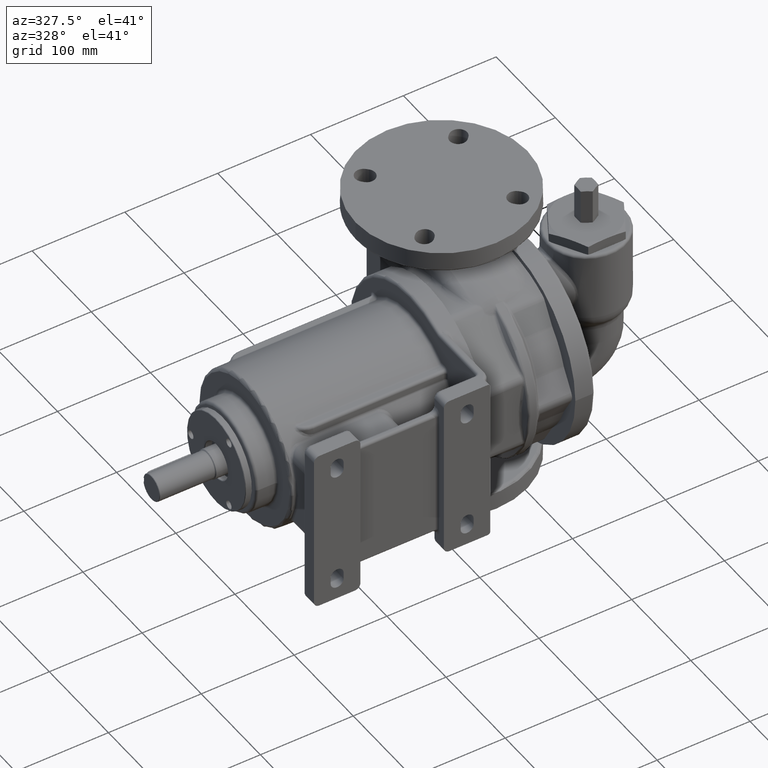
[diagram: clean part render]
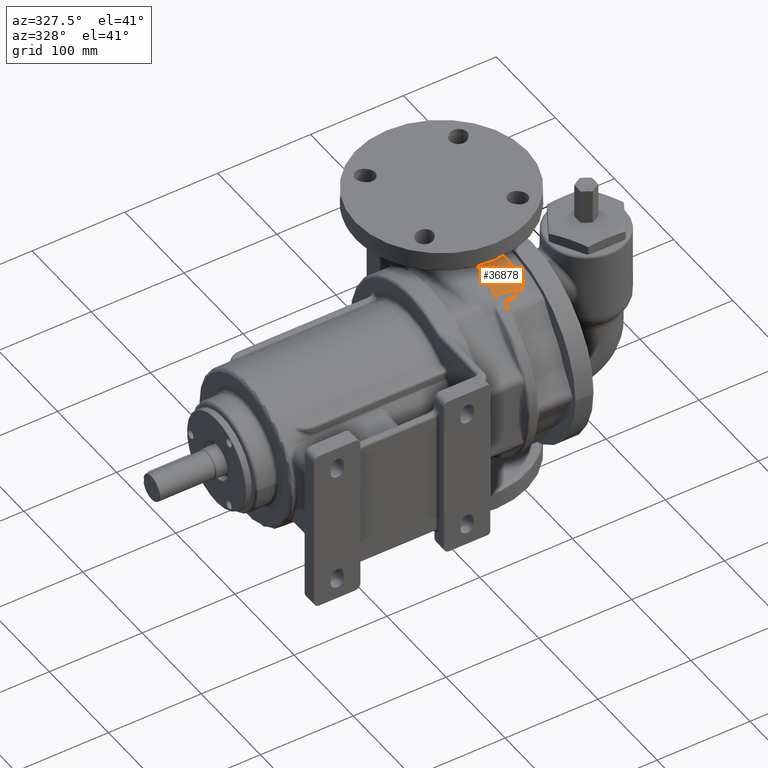
[diagram: same view with one face highlighted and labeled with its STEP entity id]
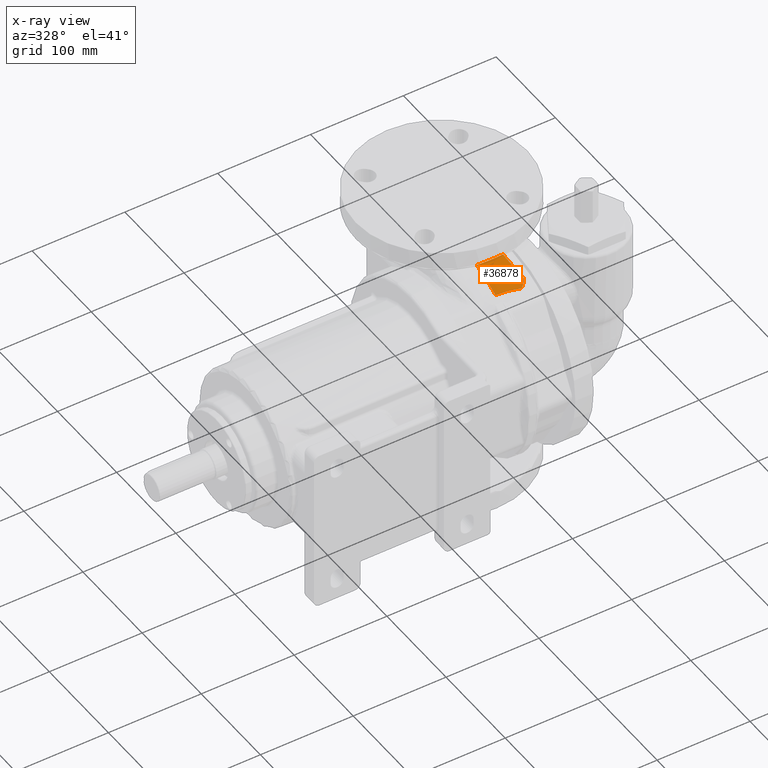
[diagram: x-ray of the same camera — body ghosted, the highlighted face saturated]
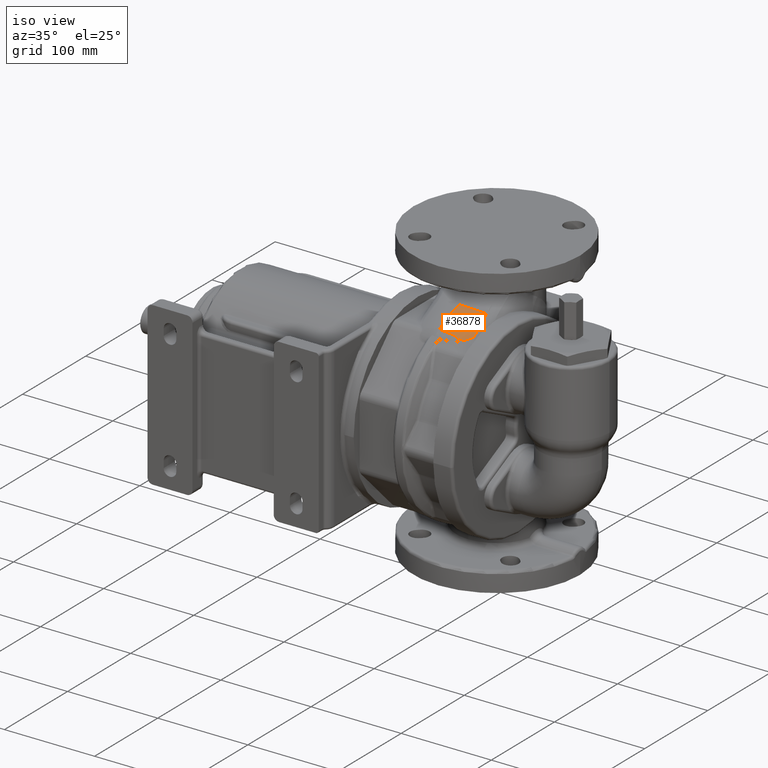
[diagram: same view with one face highlighted and labeled with its STEP entity id]
A machine part, auxiliary view. The second image highlights one B-rep face of the part: STEP entity #36878.
The next image is the same camera in x-ray: the body ghosted, the highlighted face saturated — about 0% of this face is hidden behind the body in this view.
A second angle (iso view) of the same face is appended — the face is thin or edge-on in the first view.
In plain terms, the highlighted face is a freeform B-spline surface patch.
Its self-contained STEP definition (entity closure, byte-faithful):
#11578=CARTESIAN_POINT('',(5.75E1,-3.641429363927E1,9.635351785667E1));
#11579=CARTESIAN_POINT('',(5.906498822332E1,-3.641429363334E1,
9.635351785990E1));
#11580=CARTESIAN_POINT('',(6.218953987240E1,-3.645591206184E1,
9.626924509475E1));
#11581=CARTESIAN_POINT('',(6.683578381111E1,-3.662721776679E1,
9.590749170853E1));
#11582=CARTESIAN_POINT('',(7.142054853473E1,-3.687772364851E1,
9.534184933829E1));
#11583=CARTESIAN_POINT('',(7.592991558307E1,-3.716929804545E1,
9.461347947619E1));
#11584=CARTESIAN_POINT('',(8.035750452245E1,-3.746001292933E1,
9.376921951175E1));
#11585=CARTESIAN_POINT('',(8.335526231400E1,-3.763026071325E1,
9.314120211050E1));
#11586=CARTESIAN_POINT('',(8.489011523713E1,-3.770318062381E1,
9.281252468212E1));
#11587=CARTESIAN_POINT('',(8.499136892950E1,-3.770790203825E1,
9.279082846550E1));
#11622=CARTESIAN_POINT('',(8.499136892950E1,-3.770790203825E1,
9.279082846550E1));
#11623=CARTESIAN_POINT('',(8.530971009739E1,-3.745028608427E1,
9.289480571156E1));
#11624=CARTESIAN_POINT('',(8.591022660031E1,-3.695077193227E1,
9.309393266545E1));
#11625=CARTESIAN_POINT('',(8.666640818964E1,-3.628838218084E1,
9.335237100900E1));
#11626=CARTESIAN_POINT('',(8.738368506697E1,-3.562450229050E1,
9.360694707075E1));
#11627=CARTESIAN_POINT('',(8.806399490749E1,-3.495863379986E1,
9.385728433723E1));
#11628=CARTESIAN_POINT('',(8.870255945674E1,-3.429700559873E1,
9.410121721849E1));
#11629=CARTESIAN_POINT('',(8.930090635841E1,-3.364035809436E1,
9.433858265952E1));
#11630=CARTESIAN_POINT('',(8.986732958443E1,-3.298146136144E1,
9.457210578005E1));
#11631=CARTESIAN_POINT('',(9.041036123475E1,-3.231130934754E1,
9.480492674145E1));
#11632=CARTESIAN_POINT('',(9.094161087569E1,-3.161533211393E1,
9.504175102008E1));
#11633=CARTESIAN_POINT('',(9.146498982397E1,-3.088671539665E1,
9.528424767532E1));
#11634=CARTESIAN_POINT('',(9.181002178834E1,-3.037634786279E1,
9.545006538837E1));
#11635=CARTESIAN_POINT('',(9.198138912517E1,-3.011477579497E1,
9.553398993092E1));
#11637=CARTESIAN_POINT('',(5.75E1,-4.663529415385E0,1.092018104859E2));
#11638=CARTESIAN_POINT('',(5.75E1,-5.352742119182E0,1.090109943583E2));
#11639=CARTESIAN_POINT('',(5.749999999054E1,-6.728437341860E0,
1.086195047868E2));
#11640=CARTESIAN_POINT('',(5.750000004729E1,-9.468352340442E0,
1.077972523659E2));
#11641=CARTESIAN_POINT('',(5.749999945131E1,-1.423159002248E1,
1.062556702847E2));
#11642=CARTESIAN_POINT('',(5.750000331108E1,-1.959635647680E1,
1.042613550968E2));
#11643=CARTESIAN_POINT('',(5.749999546358E1,-2.420993436579E1,
1.023171694214E2));
#11644=CARTESIAN_POINT('',(5.750000795221E1,-2.682162278541E1,
1.011500002010E2));
#11645=CARTESIAN_POINT('',(5.750000173053E1,-2.876767342541E1,
1.002466953967E2));
#11646=CARTESIAN_POINT('',(5.749998512472E1,-3.070060606528E1,
9.931564964019E1));
#11647=CARTESIAN_POINT('',(5.749999773006E1,-3.230011540240E1,
9.851682317836E1));
#11648=CARTESIAN_POINT('',(5.750000706110E1,-3.357277096961E1,
9.786408442864E1));
#11649=CARTESIAN_POINT('',(5.750000057607E1,-3.452374093941E1,
9.736771499379E1));
#11650=CARTESIAN_POINT('',(5.749999063450E1,-3.547113707021E1,
9.686455739986E1));
#11651=CARTESIAN_POINT('',(5.75E1,-3.610031504109E1,9.652461337117E1));
#11652=CARTESIAN_POINT('',(5.75E1,-3.641429363927E1,9.635351785667E1));
#11654=CARTESIAN_POINT('',(5.75E1,-4.663529415385E0,1.092018104859E2));
#11655=CARTESIAN_POINT('',(5.873716584149E1,-4.663529415379E0,
1.092018104859E2));
#11656=CARTESIAN_POINT('',(6.122223768292E1,-4.682444807190E0,
1.091827290595E2));
#11657=CARTESIAN_POINT('',(6.623036882342E1,-4.756671567856E0,
1.090664218838E2));
#11658=CARTESIAN_POINT('',(7.253963043591E1,-4.802597934432E0,
1.087654549056E2));
#11659=CARTESIAN_POINT('',(7.882706168378E1,-4.418524818274E0,
1.082154114425E2));
#11660=CARTESIAN_POINT('',(8.359827773039E1,-3.699962853461E0,
1.076152349857E2));
#11661=CARTESIAN_POINT('',(8.585694992292E1,-3.212010948847E0,
1.072678506477E2));
#11662=CARTESIAN_POINT('',(8.689668334943E1,-2.952633801193E0,
1.070926098027E2));
#12092=CARTESIAN_POINT('',(9.198138912517E1,-3.011477579497E1,
9.553398993092E1));
#12093=CARTESIAN_POINT('',(9.195727468503E1,-2.995996622045E1,
9.561176157260E1));
#12094=CARTESIAN_POINT('',(9.187379280156E1,-2.942461434328E1,
9.587889726830E1));
#12095=CARTESIAN_POINT('',(9.167228387341E1,-2.813301713875E1,
9.650915242243E1));
#12096=CARTESIAN_POINT('',(9.137395069380E1,-2.625236645756E1,
9.738856582817E1));
#12097=CARTESIAN_POINT('',(9.088002723488E1,-2.328261621252E1,
9.871717161970E1));
#12098=CARTESIAN_POINT('',(9.024728634583E1,-1.963169620267E1,
1.002641539565E2));
#12099=CARTESIAN_POINT('',(8.945584301342E1,-1.533344101457E1,
1.020164607171E2));
#12100=CARTESIAN_POINT('',(8.877707871024E1,-1.181506311380E1,
1.034305144958E2));
#12101=CARTESIAN_POINT('',(8.821850512696E1,-9.044140406449E0,
1.045523317895E2));
#12102=CARTESIAN_POINT('',(8.786146317334E1,-7.330646916127E0,
1.052534491263E2));
#12103=CARTESIAN_POINT('',(8.757030803368E1,-5.970873859408E0,
1.058164533582E2));
#12104=CARTESIAN_POINT('',(8.727527570830E1,-4.619284139622E0,
1.063811782552E2));
#12105=CARTESIAN_POINT('',(8.704973280991E1,-3.617843877446E0,
1.068064332776E2));
#12106=CARTESIAN_POINT('',(8.689668334943E1,-2.952633801193E0,
1.070926098027E2));
#17245=VERTEX_POINT('',#11637);
#17246=VERTEX_POINT('',#11652);
#17248=VERTEX_POINT('',#11662);
#17432=VERTEX_POINT('',#11622);
#17433=VERTEX_POINT('',#11635);
#36723=CARTESIAN_POINT('',(5.713772197652E1,-3.671986967999E1,
9.618598404739E1));
#36724=CARTESIAN_POINT('',(5.713869745730E1,-3.630434192578E1,
9.641368023246E1));
#36725=CARTESIAN_POINT('',(5.714030888926E1,-3.557299083855E1,
9.680994135797E1));
#36726=CARTESIAN_POINT('',(5.714248798167E1,-3.452205310815E1,
9.736809978699E1));
#36727=CARTESIAN_POINT('',(5.714436917324E1,-3.356984254467E1,
9.786511271386E1));
#36728=CARTESIAN_POINT('',(5.714678803055E1,-3.229544986057E1,
9.851871833080E1));
#36729=CARTESIAN_POINT('',(5.714972788084E1,-3.069370806151E1,
9.931859570302E1));
#36730=CARTESIAN_POINT('',(5.715329487075E1,-2.875826143678E1,
1.002507255865E2));
#36731=CARTESIAN_POINT('',(5.715696443563E1,-2.681009553945E1,
1.011548417671E2));
#36732=CARTESIAN_POINT('',(5.716207127171E1,-2.419633912608E1,
1.023226652193E2));
#36733=CARTESIAN_POINT('',(5.717179166852E1,-1.958145350679E1,
1.042668357287E2));
#36734=CARTESIAN_POINT('',(5.718493350649E1,-1.422048537695E1,
1.062591181815E2));
#36735=CARTESIAN_POINT('',(5.719869412380E1,-9.462322678530E0,
1.077988677198E2));
#36736=CARTESIAN_POINT('',(5.720770665922E1,-6.618377347725E0,
1.086523186440E2));
#36737=CARTESIAN_POINT('',(5.721275811334E1,-5.136344592898E0,
1.090722994155E2));
#36738=CARTESIAN_POINT('',(5.721560743699E1,-4.339726417544E0,
1.092909560408E2));
#36739=CARTESIAN_POINT('',(5.882778883413E1,-3.671509257915E1,
9.619379828013E1));
#36740=CARTESIAN_POINT('',(5.882423491258E1,-3.630128556852E1,
9.642042933640E1));
#36741=CARTESIAN_POINT('',(5.881825931095E1,-3.557333947546E1,
9.681466843999E1));
#36742=CARTESIAN_POINT('',(5.881031887220E1,-3.452825923238E1,
9.736955225743E1));
#36743=CARTESIAN_POINT('',(5.880344999875E1,-3.358188400211E1,
9.786344624006E1));
#36744=CARTESIAN_POINT('',(5.879453453480E1,-3.231567178763E1,
9.851285932844E1));
#36745=CARTESIAN_POINT('',(5.878368986344E1,-3.072446414228E1,
9.930766042192E1));
#36746=CARTESIAN_POINT('',(5.877067351025E1,-2.880091667762E1,1.002345415E2));
#36747=CARTESIAN_POINT('',(5.875722419418E1,-2.686280744016E1,
1.011346969612E2));
#36748=CARTESIAN_POINT('',(5.873839929863E1,-2.425895860954E1,
1.022992536846E2));
#36749=CARTESIAN_POINT('',(5.870269996374E1,-1.965060545899E1,
1.042431697161E2));
#36750=CARTESIAN_POINT('',(5.865437957812E1,-1.427213526310E1,
1.062446352142E2));
#36751=CARTESIAN_POINT('',(5.860383412737E1,-9.490106578916E0,
1.077925776052E2));
#36752=CARTESIAN_POINT('',(5.857073062814E1,-6.629960781189E0,
1.086506651723E2));
#36753=CARTESIAN_POINT('',(5.855217722109E1,-5.138176828751E0,
1.090730881876E2));
#36754=CARTESIAN_POINT('',(5.854171145743E1,-4.335820867130E0,
1.092930768329E2));
#36755=CARTESIAN_POINT('',(6.208162152411E1,-3.675318867608E1,
9.611269275114E1));
#36756=CARTESIAN_POINT('',(6.206942195068E1,-3.634248631986E1,
9.633896034316E1));
#36757=CARTESIAN_POINT('',(6.204895407021E1,-3.562041439091E1,
9.673220584430E1));
#36758=CARTESIAN_POINT('',(6.202165595988E1,-3.458537434144E1,
9.728455968089E1));
#36759=CARTESIAN_POINT('',(6.199804604923E1,-3.364894573427E1,
9.777561407128E1));
#36760=CARTESIAN_POINT('',(6.196747127173E1,-3.239641818647E1,
9.842097174070E1));
#36761=CARTESIAN_POINT('',(6.193036914363E1,-3.082226978975E1,
9.921069736376E1));
#36762=CARTESIAN_POINT('',(6.188596272270E1,-2.891701318755E1,
1.001326463553E2));
#36763=CARTESIAN_POINT('',(6.184032783723E1,-2.699317020519E1,
1.010299263406E2));
#36764=CARTESIAN_POINT('',(6.177675665815E1,-2.440137112688E1,
1.021940023639E2));
#36765=CARTESIAN_POINT('',(6.165656712408E1,-1.979393504933E1,
1.041462307489E2));
#36766=CARTESIAN_POINT('',(6.149358350819E1,-1.437591580271E1,
1.061734846627E2));
#36767=CARTESIAN_POINT('',(6.132227689238E1,-9.553127681322E0,
1.077468431830E2));
#36768=CARTESIAN_POINT('',(6.120998605779E1,-6.667846253129E0,
1.086207913182E2));
#36769=CARTESIAN_POINT('',(6.114703226122E1,-5.161991846614E0,
1.090519170409E2));
#36770=CARTESIAN_POINT('',(6.111153400953E1,-4.351436584035E0,
1.092768015907E2));
#36771=CARTESIAN_POINT('',(6.841080603209E1,-3.698224271884E1,
9.561734810219E1));
#36772=CARTESIAN_POINT('',(6.838315039063E1,-3.657659365044E1,
9.584863797277E1));
#36773=CARTESIAN_POINT('',(6.833675614602E1,-3.586308238303E1,
9.624982456314E1));
#36774=CARTESIAN_POINT('',(6.827452922083E1,-3.484249709685E1,
9.681011648840E1));
#36775=CARTESIAN_POINT('',(6.822052122419E1,-3.392022757805E1,
9.730642092615E1));
#36776=CARTESIAN_POINT('',(6.815051421219E1,-3.268619101001E1,
9.795755358561E1));
#36777=CARTESIAN_POINT('',(6.806552459285E1,-3.113286938891E1,
9.875336153280E1));
#36778=CARTESIAN_POINT('',(6.796389114411E1,-2.924588648309E1,
9.968320465842E1));
#36779=CARTESIAN_POINT('',(6.785968838501E1,-2.733098092615E1,
1.005908644051E2));
#36780=CARTESIAN_POINT('',(6.771481931400E1,-2.473686163642E1,
1.017734590975E2));
#36781=CARTESIAN_POINT('',(6.744104871018E1,-2.008842810680E1,
1.037712473658E2));
#36782=CARTESIAN_POINT('',(6.706838654970E1,-1.456814399022E1,
1.058764439711E2));
#36783=CARTESIAN_POINT('',(6.667755674160E1,-9.678123527283E0,
1.075323042325E2));
#36784=CARTESIAN_POINT('',(6.642175490746E1,-6.761280761090E0,
1.084609094125E2));
#36785=CARTESIAN_POINT('',(6.627847318700E1,-5.242048989962E0,
1.089228388052E2));
#36786=CARTESIAN_POINT('',(6.619773724022E1,-4.424088637367E0,
1.091653770763E2));
#36787=CARTESIAN_POINT('',(7.601275287849E1,-3.746604238236E1,
9.449011515201E1));
#36788=CARTESIAN_POINT('',(7.597016662441E1,-3.706384808092E1,
9.473610814259E1));
#36789=CARTESIAN_POINT('',(7.589871155561E1,-3.635426669846E1,
9.516179606449E1));
#36790=CARTESIAN_POINT('',(7.580189760734E1,-3.534051999240E1,
9.575097370134E1));
#36791=CARTESIAN_POINT('',(7.571719153771E1,-3.442491157432E1,
9.626968659267E1));
#36792=CARTESIAN_POINT('',(7.560688909117E1,-3.319753738766E1,
9.694807872817E1));
#36793=CARTESIAN_POINT('',(7.547223385302E1,-3.164664883264E1,
9.777473595456E1));
#36794=CARTESIAN_POINT('',(7.531022993536E1,-2.975113719198E1,
9.873955637607E1));
#36795=CARTESIAN_POINT('',(7.514341350316E1,-2.781453080117E1,
9.968272257109E1));
#36796=CARTESIAN_POINT('',(7.491073887245E1,-2.517357253265E1,
1.009154256537E2));
#36797=CARTESIAN_POINT('',(7.446888508500E1,-2.040224189776E1,
1.030099549179E2));
#36798=CARTESIAN_POINT('',(7.386634469751E1,-1.470582411878E1,
1.052501887869E2));
#36799=CARTESIAN_POINT('',(7.324482835212E1,-9.739830594535E0,
1.070535943919E2));
#36800=CARTESIAN_POINT('',(7.284070055381E1,-6.804399381818E0,
1.080826502715E2));
#36801=CARTESIAN_POINT('',(7.261521485365E1,-5.286629647472E0,
1.086019997532E2));
#36802=CARTESIAN_POINT('',(7.248834168251E1,-4.470808804648E0,
1.088778109001E2));
#36803=CARTESIAN_POINT('',(8.333200218051E1,-3.795075220595E1,
9.297104352951E1));
#36804=CARTESIAN_POINT('',(8.327960197066E1,-3.754611949167E1,
9.323712118260E1));
#36805=CARTESIAN_POINT('',(8.319132275874E1,-3.682901652599E1,
9.369642212013E1));
#36806=CARTESIAN_POINT('',(8.306963599951E1,-3.580510820339E1,
9.432533894753E1));
#36807=CARTESIAN_POINT('',(8.296168667095E1,-3.488065288085E1,
9.487479600431E1));
#36808=CARTESIAN_POINT('',(8.281966194480E1,-3.363869779965E1,
9.559022599717E1));
#36809=CARTESIAN_POINT('',(8.264382197350E1,-3.206282667850E1,
9.645774836030E1));
#36810=CARTESIAN_POINT('',(8.242895304745E1,-3.012552879307E1,
9.746665045151E1));
#36811=CARTESIAN_POINT('',(8.220529077677E1,-2.813397871326E1,
9.845231537526E1));
#36812=CARTESIAN_POINT('',(8.189133978096E1,-2.540201200632E1,
9.974260931597E1));
#36813=CARTESIAN_POINT('',(8.129274242179E1,-2.043166225150E1,
1.019442772775E2));
#36814=CARTESIAN_POINT('',(8.048872566846E1,-1.447709486295E1,
1.043336123400E2));
#36815=CARTESIAN_POINT('',(7.969778154256E1,-9.389973684041E0,
1.063018759855E2));
#36816=CARTESIAN_POINT('',(7.919501370372E1,-6.420897903835E0,
1.074442224797E2));
#36817=CARTESIAN_POINT('',(7.891893284170E1,-4.901388797535E0,
1.080290062517E2));
#36818=CARTESIAN_POINT('',(7.876462830125E1,-4.087267551800E0,
1.083432088749E2));
#36819=CARTESIAN_POINT('',(8.913536351357E1,-3.817920534469E1,
9.169679837034E1));
#36820=CARTESIAN_POINT('',(8.907551809218E1,-3.776887069891E1,
9.197794186883E1));
#36821=CARTESIAN_POINT('',(8.897394811863E1,-3.703921006649E1,
9.246209667232E1));
#36822=CARTESIAN_POINT('',(8.883190295566E1,-3.599823889119E1,
9.311902569175E1));
#36823=CARTESIAN_POINT('',(8.870454884204E1,-3.505910241866E1,
9.368910479989E1));
#36824=CARTESIAN_POINT('',(8.853549026961E1,-3.379594978760E1,
9.442828675210E1));
#36825=CARTESIAN_POINT('',(8.832365884432E1,-3.218930673551E1,
9.532026765315E1));
#36826=CARTESIAN_POINT('',(8.806189332362E1,-3.020698724874E1,
9.635388832051E1));
#36827=CARTESIAN_POINT('',(8.778773555833E1,-2.816035726818E1,
9.736302991541E1));
#36828=CARTESIAN_POINT('',(8.740214829047E1,-2.534019686254E1,
9.868599931321E1));
#36829=CARTESIAN_POINT('',(8.666871364678E1,-2.017955639832E1,
1.009526721382E2));
#36830=CARTESIAN_POINT('',(8.570496637189E1,-1.396525010601E1,
1.034441385785E2));
#36831=CARTESIAN_POINT('',(8.480336668285E1,-8.723527047674E0,
1.055278661422E2));
#36832=CARTESIAN_POINT('',(8.424614206465E1,-5.691486907818E0,
1.067498717418E2));
#36833=CARTESIAN_POINT('',(8.394669071456E1,-4.150729031416E0,
1.073809857212E2));
#36834=CARTESIAN_POINT('',(8.378104133935E1,-3.327127132560E0,
1.077226136334E2));
#36835=CARTESIAN_POINT('',(9.203801843082E1,-3.821386337846E1,
9.106510714219E1));
#36836=CARTESIAN_POINT('',(9.197399307484E1,-3.779945772066E1,
9.135261026727E1));
#36837=CARTESIAN_POINT('',(9.186480317929E1,-3.706148797819E1,
9.184704717002E1));
#36838=CARTESIAN_POINT('',(9.171109322225E1,-3.600935761559E1,
9.251478370271E1));
#36839=CARTESIAN_POINT('',(9.157266607419E1,-3.506075200305E1,
9.309220881561E1));
#36840=CARTESIAN_POINT('',(9.138816067628E1,-3.378449441849E1,
9.383921723764E1));
#36841=CARTESIAN_POINT('',(9.115574603060E1,-3.215991647818E1,
9.473824863315E1));
#36842=CARTESIAN_POINT('',(9.086731961495E1,-3.015261804052E1,
9.577809977482E1));
#36843=CARTESIAN_POINT('',(9.056471357004E1,-2.807610799011E1,
9.679314226095E1));
#36844=CARTESIAN_POINT('',(9.013918629136E1,-2.520835732583E1,
9.812518531853E1));
#36845=CARTESIAN_POINT('',(8.933198065183E1,-1.994425876924E1,
1.004131805963E2));
#36846=CARTESIAN_POINT('',(8.828486599322E1,-1.358201634511E1,
1.029455395836E2));
#36847=CARTESIAN_POINT('',(8.733182105972E1,-8.239451006567E0,
1.050769315687E2));
#36848=CARTESIAN_POINT('',(8.675255134768E1,-5.159825144802E0,
1.063319354104E2));
#36849=CARTESIAN_POINT('',(8.644541525085E1,-3.599052362780E0,
1.069823316141E2));
#36850=CARTESIAN_POINT('',(8.627666740659E1,-2.765415427556E0,
1.073354464176E2));
#36851=CARTESIAN_POINT('',(9.353110549868E1,-3.820474117054E1,
9.074867203830E1));
#36852=CARTESIAN_POINT('',(9.346465756876E1,-3.778795119217E1,
9.103890772497E1));
#36853=CARTESIAN_POINT('',(9.335103619903E1,-3.704525221628E1,
9.153767427112E1));
#36854=CARTESIAN_POINT('',(9.319061152055E1,-3.598684413657E1,
9.220962348818E1));
#36855=CARTESIAN_POINT('',(9.304586416262E1,-3.503297148755E1,
9.278963271408E1));
#36856=CARTESIAN_POINT('',(9.285258238573E1,-3.374956434239E1,
9.353908785396E1));
#36857=CARTESIAN_POINT('',(9.260854266790E1,-3.211545281339E1,
9.443980865666E1));
#36858=CARTESIAN_POINT('',(9.230518420248E1,-3.009512140605E1,
9.548066041730E1));
#36859=CARTESIAN_POINT('',(9.198675993246E1,-2.800308575991E1,
9.649668791382E1));
#36860=CARTESIAN_POINT('',(9.153915799637E1,-2.511051625097E1,
9.783087447844E1));
#36861=CARTESIAN_POINT('',(9.069151983865E1,-1.979189103627E1,
1.001259505976E2));
#36862=CARTESIAN_POINT('',(8.959937648678E1,-1.334935696849E1,
1.026756180281E2));
#36863=CARTESIAN_POINT('',(8.861919613082E1,-7.948392484442E0,
1.048277702441E2));
#36864=CARTESIAN_POINT('',(8.802866855348E1,-4.839537348134E0,
1.060971852150E2));
#36865=CARTESIAN_POINT('',(8.771783446279E1,-3.265606394395E0,
1.067560222622E2));
#36866=CARTESIAN_POINT('',(8.754769533925E1,-2.425166422065E0,
1.071141850785E2));
#36867=B_SPLINE_SURFACE_WITH_KNOTS('',3,3,((#36723,#36724,#36725,#36726,#36727,
#36728,#36729,#36730,#36731,#36732,#36733,#36734,#36735,#36736,#36737,#36738),(
#36739,#36740,#36741,#36742,#36743,#36744,#36745,#36746,#36747,#36748,#36749,
#36750,#36751,#36752,#36753,#36754),(#36755,#36756,#36757,#36758,#36759,#36760,
#36761,#36762,#36763,#36764,#36765,#36766,#36767,#36768,#36769,#36770),(#36771,
#36772,#36773,#36774,#36775,#36776,#36777,#36778,#36779,#36780,#36781,#36782,
#36783,#36784,#36785,#36786),(#36787,#36788,#36789,#36790,#36791,#36792,#36793,
#36794,#36795,#36796,#36797,#36798,#36799,#36800,#36801,#36802),(#36803,#36804,
#36805,#36806,#36807,#36808,#36809,#36810,#36811,#36812,#36813,#36814,#36815,
#36816,#36817,#36818),(#36819,#36820,#36821,#36822,#36823,#36824,#36825,#36826,
#36827,#36828,#36829,#36830,#36831,#36832,#36833,#36834),(#36835,#36836,#36837,
#36838,#36839,#36840,#36841,#36842,#36843,#36844,#36845,#36846,#36847,#36848,
#36849,#36850),(#36851,#36852,#36853,#36854,#36855,#36856,#36857,#36858,#36859,
#36860,#36861,#36862,#36863,#36864,#36865,#36866)),.UNSPECIFIED.,.F.,.F.,.F.,(4,
1,1,1,1,1,4),(4,1,1,1,1,1,1,1,1,1,1,1,1,4),(-8.708358631720E-3,
1.131532004403E-1,2.263064008807E-1,4.526128017613E-1,6.789192026420E-1,
7.920724030823E-1,9.142124904044E-1),(2.621560849242E-1,2.758569884217E-1,
2.862056702806E-1,2.965543521396E-1,3.069030339985E-1,3.276003977164E-1,
3.482977614342E-1,3.689951251521E-1,3.896924888699E-1,4.310872163056E-1,
5.138766711771E-1,5.552713986128E-1,5.759687623307E-1,5.999129993078E-1),
.UNSPECIFIED.);
#36869=ORIENTED_EDGE('',*,*,#36868,.F.);
#36870=ORIENTED_EDGE('',*,*,#36676,.F.);
#36871=ORIENTED_EDGE('',*,*,#30662,.F.);
#36873=ORIENTED_EDGE('',*,*,#36872,.T.);
#36875=ORIENTED_EDGE('',*,*,#36874,.F.);
#36876=EDGE_LOOP('',(#36869,#36870,#36871,#36873,#36875));
#36877=FACE_OUTER_BOUND('',#36876,.F.);
#36878=ADVANCED_FACE('',(#36877),#36867,.T.);
#11588=B_SPLINE_CURVE_WITH_KNOTS('',3,(#11578,#11579,#11580,#11581,#11582,
#11583,#11584,#11585,#11586,#11587),.UNSPECIFIED.,.F.,.F.,(4,1,1,1,1,1,1,4),(
0.E0,1.647258515321E-1,3.294517030642E-1,4.941775545963E-1,6.589034061283E-1,
8.236292576604E-1,9.883551091925E-1,1.E0),.UNSPECIFIED.);
#11636=B_SPLINE_CURVE_WITH_KNOTS('',3,(#11622,#11623,#11624,#11625,#11626,
#11627,#11628,#11629,#11630,#11631,#11632,#11633,#11634,#11635),.UNSPECIFIED.,
.F.,.F.,(4,1,1,1,1,1,1,1,1,1,1,4),(0.E0,9.090909090909E-2,1.818181818182E-1,
2.727272727273E-1,3.636363636364E-1,4.545454545455E-1,5.454545454545E-1,
6.363636363636E-1,7.272727272727E-1,8.181818181818E-1,9.090909090909E-1,1.E0),
.UNSPECIFIED.);
#11653=B_SPLINE_CURVE_WITH_KNOTS('',3,(#11637,#11638,#11639,#11640,#11641,
#11642,#11643,#11644,#11645,#11646,#11647,#11648,#11649,#11650,#11651,#11652),
.UNSPECIFIED.,.F.,.F.,(4,1,1,1,1,1,1,1,1,1,1,1,1,4),(0.E0,6.25E-2,1.25E-1,
2.5E-1,5.E-1,6.25E-1,6.875E-1,7.5E-1,8.125E-1,8.75E-1,9.0625E-1,9.375E-1,
9.6875E-1,1.E0),.UNSPECIFIED.);
#11663=B_SPLINE_CURVE_WITH_KNOTS('',3,(#11654,#11655,#11656,#11657,#11658,
#11659,#11660,#11661,#11662),.UNSPECIFIED.,.F.,.F.,(4,1,1,1,1,1,4),(0.E0,
1.269614314527E-1,2.539228629054E-1,5.078457258108E-1,7.617685887162E-1,
8.887300201689E-1,1.E0),.UNSPECIFIED.);
#12107=B_SPLINE_CURVE_WITH_KNOTS('',3,(#12092,#12093,#12094,#12095,#12096,
#12097,#12098,#12099,#12100,#12101,#12102,#12103,#12104,#12105,#12106),
.UNSPECIFIED.,.F.,.F.,(4,1,1,1,1,1,1,1,1,1,1,1,4),(0.E0,1.597401632500E-2,
5.533639775038E-2,1.340611606011E-1,2.127859234519E-1,3.702354491534E-1,
5.276849748549E-1,6.851345005564E-1,7.638592634072E-1,8.425840262579E-1,
8.819464076833E-1,9.213087891087E-1,1.E0),.UNSPECIFIED.);
#30662=EDGE_CURVE('',#17245,#17246,#11653,.T.);
#36676=EDGE_CURVE('',#17246,#17432,#11588,.T.);
#36868=EDGE_CURVE('',#17432,#17433,#11636,.T.);
#36872=EDGE_CURVE('',#17245,#17248,#11663,.T.);
#36874=EDGE_CURVE('',#17433,#17248,#12107,.T.);